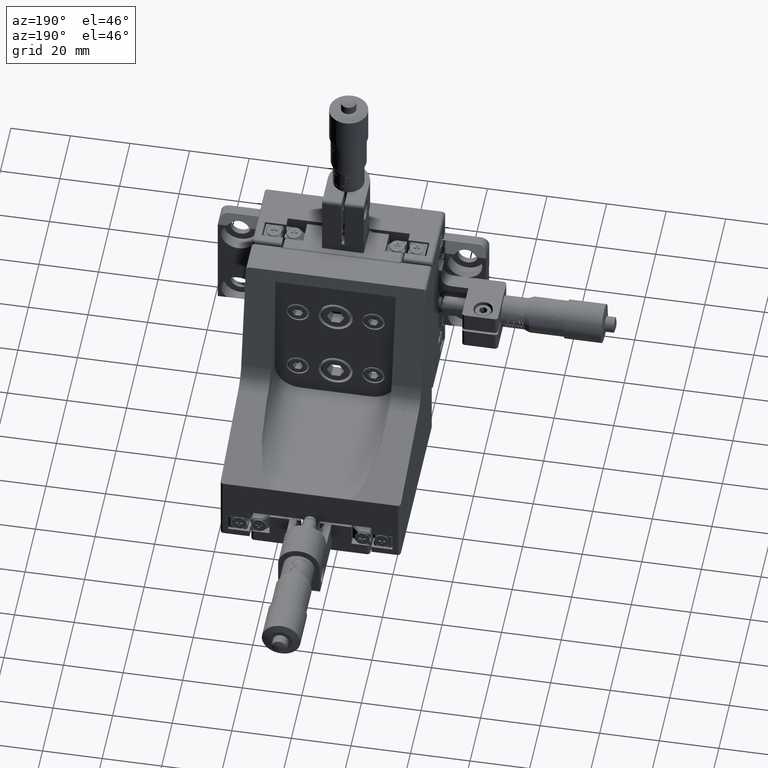
[diagram: clean part render]
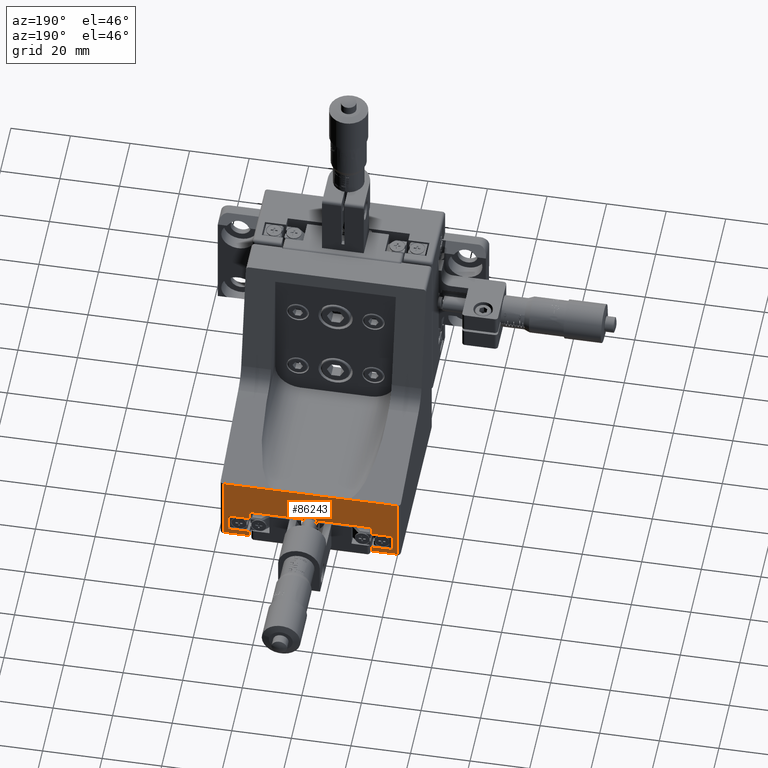
[diagram: same view with one face highlighted and labeled with its STEP entity id]
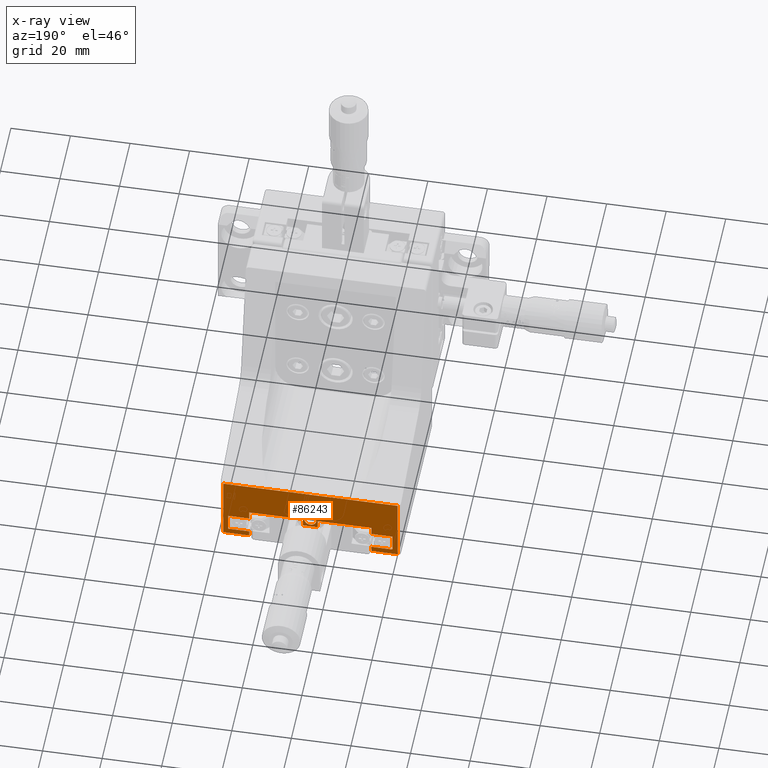
[diagram: x-ray of the same camera — body ghosted, the highlighted face saturated]
A machine part, auxiliary view. The second image highlights one B-rep face of the part: STEP entity #86243.
The next image is the same camera in x-ray: the body ghosted, the highlighted face saturated — about 0% of this face is hidden behind the body in this view.
In plain terms, the highlighted planar face has unit normal (0, 1, 0).
Its self-contained STEP definition (entity closure, byte-faithful):
#2886 = VECTOR ( 'NONE', #40735, 1000.000000000000000 ) ;
#3011 = LINE ( 'NONE', #80358, #55477 ) ;
#3198 = ORIENTED_EDGE ( 'NONE', *, *, #19032, .F. ) ;
#3262 = LINE ( 'NONE', #70730, #43471 ) ;
#4701 = CARTESIAN_POINT ( 'NONE',  ( 5.816032552456010600, 76.61820798943614400, -30.49247405631721400 ) ) ;
#5289 = CARTESIAN_POINT ( 'NONE',  ( 28.81603255245601500, 76.61820798943614400, -39.59247405631720100 ) ) ;
#6055 = ORIENTED_EDGE ( 'NONE', *, *, #11046, .F. ) ;
#6358 = EDGE_CURVE ( 'NONE', #25277, #31886, #37168, .T. ) ;
#6452 = VECTOR ( 'NONE', #89919, 1000.000000000000000 ) ;
#6771 = VERTEX_POINT ( 'NONE', #25525 ) ;
#8375 = EDGE_CURVE ( 'NONE', #32689, #14480, #49267, .T. ) ;
#9143 = VERTEX_POINT ( 'NONE', #53956 ) ;
#9743 = ORIENTED_EDGE ( 'NONE', *, *, #59594, .T. ) ;
#9948 = DIRECTION ( 'NONE',  ( -0.0000000000000000000, 0.0000000000000000000, 1.000000000000000000 ) ) ;
#11046 = EDGE_CURVE ( 'NONE', #41450, #13221, #3262, .T. ) ;
#11585 = DIRECTION ( 'NONE',  ( 1.000000000000000000, 0.0000000000000000000, 0.0000000000000000000 ) ) ;
#11787 = CARTESIAN_POINT ( 'NONE',  ( -12.18396744754399200, 76.61820798943614400, -41.49247405631721400 ) ) ;
#11817 = VERTEX_POINT ( 'NONE', #84651 ) ;
#11912 = VECTOR ( 'NONE', #71041, 1000.000000000000000 ) ;
#12260 = EDGE_CURVE ( 'NONE', #11817, #22935, #77621, .T. ) ;
#13221 = VERTEX_POINT ( 'NONE', #32316 ) ;
#13642 = DIRECTION ( 'NONE',  ( 0.0000000000000000000, 0.0000000000000000000, -1.000000000000000000 ) ) ;
#13849 = VECTOR ( 'NONE', #13642, 1000.000000000000000 ) ;
#14115 = LINE ( 'NONE', #27620, #11912 ) ;
#14480 = VERTEX_POINT ( 'NONE', #41995 ) ;
#14850 = PLANE ( 'NONE',  #23911 ) ;
#14963 = VECTOR ( 'NONE', #70775, 1000.000000000000000 ) ;
#15700 = LINE ( 'NONE', #18755, #32448 ) ;
#16664 = ORIENTED_EDGE ( 'NONE', *, *, #37840, .F. ) ;
#17235 = LINE ( 'NONE', #63592, #14963 ) ;
#18192 = VECTOR ( 'NONE', #54617, 1000.000000000000000 ) ;
#18755 = CARTESIAN_POINT ( 'NONE',  ( 28.81603255245601500, 76.61820798943614400, -33.49247405631720700 ) ) ;
#19032 = EDGE_CURVE ( 'NONE', #34493, #6771, #26937, .T. ) ;
#19044 = VERTEX_POINT ( 'NONE', #27085 ) ;
#19840 = CARTESIAN_POINT ( 'NONE',  ( 35.91603255245601600, 76.61820798943614400, -33.49247405631720700 ) ) ;
#21831 = DIRECTION ( 'NONE',  ( 1.000000000000000000, 0.0000000000000000000, 0.0000000000000000000 ) ) ;
#22220 = LINE ( 'NONE', #45187, #91398 ) ;
#22935 = VERTEX_POINT ( 'NONE', #39313 ) ;
#23640 = VERTEX_POINT ( 'NONE', #85259 ) ;
#23911 = AXIS2_PLACEMENT_3D ( 'NONE', #29505, #79430, #36686 ) ;
#25277 = VERTEX_POINT ( 'NONE', #78002 ) ;
#25467 = LINE ( 'NONE', #39428, #6452 ) ;
#25525 = CARTESIAN_POINT ( 'NONE',  ( 8.316032552456013200, 76.61820798943614400, -32.69247405631721600 ) ) ;
#25527 = EDGE_CURVE ( 'NONE', #9143, #35130, #86416, .T. ) ;
#26787 = DIRECTION ( 'NONE',  ( 0.0000000000000000000, 0.0000000000000000000, -1.000000000000000000 ) ) ;
#26937 = CIRCLE ( 'NONE', #62770, 2.000000000000001800 ) ;
#26955 = VECTOR ( 'NONE', #85157, 1000.000000000000000 ) ;
#27085 = CARTESIAN_POINT ( 'NONE',  ( 28.81603255245601500, 76.61820798943614400, -30.49247405631721400 ) ) ;
#27421 = EDGE_LOOP ( 'NONE', ( #3198, #53498 ) ) ;
#27620 = CARTESIAN_POINT ( 'NONE',  ( -12.18396744754399200, 76.61820798943614400, -33.49247405631720700 ) ) ;
#29505 = CARTESIAN_POINT ( 'NONE',  ( -21.93396744754398500, 76.61820798943614400, -41.49247405631720700 ) ) ;
#31886 = VERTEX_POINT ( 'NONE', #44657 ) ;
#32316 = CARTESIAN_POINT ( 'NONE',  ( 28.81603255245601500, 76.61820798943614400, -39.59247405631720100 ) ) ;
#32448 = VECTOR ( 'NONE', #11585, 1000.000000000000000 ) ;
#32689 = VERTEX_POINT ( 'NONE', #79987 ) ;
#33384 = VECTOR ( 'NONE', #71651, 1000.000000000000000 ) ;
#34493 = VERTEX_POINT ( 'NONE', #45564 ) ;
#35108 = DIRECTION ( 'NONE',  ( -1.000000000000000000, 0.0000000000000000000, 8.551453754815241900E-016 ) ) ;
#35130 = VERTEX_POINT ( 'NONE', #82499 ) ;
#35263 = CARTESIAN_POINT ( 'NONE',  ( -19.28396744754398600, 76.61820798943614400, -33.49247405631720700 ) ) ;
#35953 = DIRECTION ( 'NONE',  ( -0.0000000000000000000, 0.0000000000000000000, -1.000000000000000000 ) ) ;
#36288 = EDGE_CURVE ( 'NONE', #35130, #66592, #3011, .T. ) ;
#36442 = CARTESIAN_POINT ( 'NONE',  ( 8.316032552456013200, 76.61820798943614400, -30.69247405631721300 ) ) ;
#36446 = VECTOR ( 'NONE', #26787, 1000.000000000000000 ) ;
#36686 = DIRECTION ( 'NONE',  ( 0.0000000000000000000, -0.0000000000000000000, 1.000000000000000000 ) ) ;
#36869 = VECTOR ( 'NONE', #47165, 1000.000000000000000 ) ;
#37168 = LINE ( 'NONE', #4701, #18192 ) ;
#37580 = EDGE_CURVE ( 'NONE', #23640, #58471, #14115, .T. ) ;
#37840 = EDGE_CURVE ( 'NONE', #46895, #19044, #40855, .T. ) ;
#37925 = DIRECTION ( 'NONE',  ( 1.000000000000000000, 0.0000000000000000000, 0.0000000000000000000 ) ) ;
#39144 = CARTESIAN_POINT ( 'NONE',  ( -21.93396744754398500, 76.61820798943614400, -41.49247405631720700 ) ) ;
#39307 = ORIENTED_EDGE ( 'NONE', *, *, #36288, .T. ) ;
#39313 = CARTESIAN_POINT ( 'NONE',  ( -19.28396744754398600, 76.61820798943614400, -33.49247405631720700 ) ) ;
#39428 = CARTESIAN_POINT ( 'NONE',  ( -12.18396744754399200, 76.61820798943614400, -39.59247405631720100 ) ) ;
#39655 = CARTESIAN_POINT ( 'NONE',  ( 10.81603255245601500, 76.61820798943614400, -30.49247405631721400 ) ) ;
#40735 = DIRECTION ( 'NONE',  ( 1.000000000000000000, 0.0000000000000000000, 0.0000000000000000000 ) ) ;
#40855 = LINE ( 'NONE', #76265, #2886 ) ;
#40861 = EDGE_CURVE ( 'NONE', #62906, #41450, #87551, .T. ) ;
#41450 = VERTEX_POINT ( 'NONE', #49467 ) ;
#41474 = ORIENTED_EDGE ( 'NONE', *, *, #37580, .F. ) ;
#41804 = DIRECTION ( 'NONE',  ( 0.0000000000000000000, 1.000000000000000000, 0.0000000000000000000 ) ) ;
#41992 = EDGE_CURVE ( 'NONE', #22935, #23640, #64935, .T. ) ;
#41995 = CARTESIAN_POINT ( 'NONE',  ( 37.56603255245600800, 76.61820798943614400, -41.49247405631720700 ) ) ;
#43264 = ORIENTED_EDGE ( 'NONE', *, *, #59072, .F. ) ;
#43311 = EDGE_CURVE ( 'NONE', #55396, #11817, #25467, .T. ) ;
#43319 = ORIENTED_EDGE ( 'NONE', *, *, #6358, .T. ) ;
#43471 = VECTOR ( 'NONE', #35108, 1000.000000000000000 ) ;
#43642 = DIRECTION ( 'NONE',  ( 0.0000000000000000000, 0.0000000000000000000, 1.000000000000000000 ) ) ;
#44657 = CARTESIAN_POINT ( 'NONE',  ( 5.816032552456003500, 76.61820798943614400, -30.49247405631721400 ) ) ;
#45187 = CARTESIAN_POINT ( 'NONE',  ( -12.18396744754399200, 76.61820798943614400, -42.49247405631721400 ) ) ;
#45388 = CARTESIAN_POINT ( 'NONE',  ( -12.18396744754399200, 76.61820798943614400, -39.59247405631720100 ) ) ;
#45395 = VECTOR ( 'NONE', #21831, 1000.000000000000000 ) ;
#45564 = CARTESIAN_POINT ( 'NONE',  ( 8.316032552456013200, 76.61820798943614400, -28.69247405631720900 ) ) ;
#46350 = DIRECTION ( 'NONE',  ( 1.000000000000000000, 0.0000000000000000000, 0.0000000000000000000 ) ) ;
#46439 = CARTESIAN_POINT ( 'NONE',  ( 28.81603255245601500, 76.61820798943614400, -33.49247405631720700 ) ) ;
#46895 = VERTEX_POINT ( 'NONE', #61893 ) ;
#47165 = DIRECTION ( 'NONE',  ( 0.0000000000000000000, 0.0000000000000000000, -1.000000000000000000 ) ) ;
#47236 = CARTESIAN_POINT ( 'NONE',  ( -19.28396744754398600, 76.61820798943614400, -39.59247405631720100 ) ) ;
#47821 = LINE ( 'NONE', #49777, #83436 ) ;
#48491 = ORIENTED_EDGE ( 'NONE', *, *, #83075, .T. ) ;
#49267 = LINE ( 'NONE', #39144, #84900 ) ;
#49467 = CARTESIAN_POINT ( 'NONE',  ( 35.91603255245601600, 76.61820798943614400, -39.59247405631720800 ) ) ;
#49777 = CARTESIAN_POINT ( 'NONE',  ( -21.93396744754398500, 76.61820798943614400, -41.49247405631720700 ) ) ;
#50134 = CARTESIAN_POINT ( 'NONE',  ( 5.816032552456010600, 76.61820798943614400, -33.49247405631720700 ) ) ;
#51768 = ORIENTED_EDGE ( 'NONE', *, *, #54836, .F. ) ;
#52373 = DIRECTION ( 'NONE',  ( 0.0000000000000000000, 0.0000000000000000000, 1.000000000000000000 ) ) ;
#53498 = ORIENTED_EDGE ( 'NONE', *, *, #83236, .F. ) ;
#53956 = CARTESIAN_POINT ( 'NONE',  ( -20.93396744754398500, 76.61820798943614400, -41.49247405631720700 ) ) ;
#54617 = DIRECTION ( 'NONE',  ( -0.0000000000000000000, -0.0000000000000000000, 1.000000000000000000 ) ) ;
#54726 = CIRCLE ( 'NONE', #85737, 2.000000000000001800 ) ;
#54836 = EDGE_CURVE ( 'NONE', #80660, #55396, #22220, .T. ) ;
#55396 = VERTEX_POINT ( 'NONE', #45388 ) ;
#55452 = LINE ( 'NONE', #5289, #36446 ) ;
#55477 = VECTOR ( 'NONE', #37925, 1000.000000000000000 ) ;
#55859 = LINE ( 'NONE', #39655, #36869 ) ;
#56891 = DIRECTION ( 'NONE',  ( 1.000000000000000000, 0.0000000000000000000, 0.0000000000000000000 ) ) ;
#57176 = CARTESIAN_POINT ( 'NONE',  ( 37.56603255245600800, 76.61820798943614400, -41.49247405631720700 ) ) ;
#58471 = VERTEX_POINT ( 'NONE', #74422 ) ;
#58715 = VECTOR ( 'NONE', #82729, 1000.000000000000000 ) ;
#59072 = EDGE_CURVE ( 'NONE', #78818, #62906, #15700, .T. ) ;
#59594 = EDGE_CURVE ( 'NONE', #67052, #25277, #71330, .T. ) ;
#61893 = CARTESIAN_POINT ( 'NONE',  ( 10.81603255245601500, 76.61820798943614400, -30.49247405631721400 ) ) ;
#62770 = AXIS2_PLACEMENT_3D ( 'NONE', #84443, #41804, #91604 ) ;
#62906 = VERTEX_POINT ( 'NONE', #19840 ) ;
#63556 = ORIENTED_EDGE ( 'NONE', *, *, #40861, .F. ) ;
#63592 = CARTESIAN_POINT ( 'NONE',  ( 28.81603255245601500, 76.61820798943614400, -30.49247405631721400 ) ) ;
#63625 = CARTESIAN_POINT ( 'NONE',  ( 35.91603255245601600, 76.61820798943614400, -33.49247405631720700 ) ) ;
#63906 = VECTOR ( 'NONE', #35953, 1000.000000000000000 ) ;
#64260 = EDGE_CURVE ( 'NONE', #19044, #78818, #17235, .T. ) ;
#64458 = CARTESIAN_POINT ( 'NONE',  ( 10.81603255245601500, 76.61820798943614400, -33.49247405631720700 ) ) ;
#64935 = LINE ( 'NONE', #35263, #26955 ) ;
#65054 = EDGE_CURVE ( 'NONE', #66592, #14480, #68430, .T. ) ;
#65785 = FACE_BOUND ( 'NONE', #27421, .T. ) ;
#66592 = VERTEX_POINT ( 'NONE', #78578 ) ;
#66659 = ORIENTED_EDGE ( 'NONE', *, *, #25527, .T. ) ;
#67052 = VERTEX_POINT ( 'NONE', #64458 ) ;
#67505 = VECTOR ( 'NONE', #9948, 1000.000000000000000 ) ;
#67968 = ORIENTED_EDGE ( 'NONE', *, *, #86699, .F. ) ;
#68430 = LINE ( 'NONE', #57176, #63906 ) ;
#68584 = ORIENTED_EDGE ( 'NONE', *, *, #77196, .F. ) ;
#68603 = ORIENTED_EDGE ( 'NONE', *, *, #65054, .T. ) ;
#70699 = ORIENTED_EDGE ( 'NONE', *, *, #43311, .F. ) ;
#70730 = CARTESIAN_POINT ( 'NONE',  ( 35.91603255245601600, 76.61820798943614400, -39.59247405631720800 ) ) ;
#70775 = DIRECTION ( 'NONE',  ( 0.0000000000000000000, 0.0000000000000000000, -1.000000000000000000 ) ) ;
#71041 = DIRECTION ( 'NONE',  ( 0.0000000000000000000, 0.0000000000000000000, 1.000000000000000000 ) ) ;
#71330 = LINE ( 'NONE', #50134, #33384 ) ;
#71651 = DIRECTION ( 'NONE',  ( -1.000000000000000000, -0.0000000000000000000, -0.0000000000000000000 ) ) ;
#71799 = CARTESIAN_POINT ( 'NONE',  ( -12.18396744754399200, 76.61820798943614400, -30.49247405631721400 ) ) ;
#73611 = ORIENTED_EDGE ( 'NONE', *, *, #87261, .F. ) ;
#74422 = CARTESIAN_POINT ( 'NONE',  ( -12.18396744754399200, 76.61820798943614400, -30.49247405631721400 ) ) ;
#74515 = ORIENTED_EDGE ( 'NONE', *, *, #12260, .F. ) ;
#75151 = ORIENTED_EDGE ( 'NONE', *, *, #41992, .F. ) ;
#76265 = CARTESIAN_POINT ( 'NONE',  ( -12.18396744754399200, 76.61820798943614400, -30.49247405631721400 ) ) ;
#77196 = EDGE_CURVE ( 'NONE', #13221, #32689, #55452, .T. ) ;
#77621 = LINE ( 'NONE', #47236, #58715 ) ;
#78002 = CARTESIAN_POINT ( 'NONE',  ( 5.816032552456010600, 76.61820798943614400, -33.49247405631720700 ) ) ;
#78578 = CARTESIAN_POINT ( 'NONE',  ( 37.56603255245600800, 76.61820798943614400, -18.49251642354722200 ) ) ;
#78818 = VERTEX_POINT ( 'NONE', #46439 ) ;
#79430 = DIRECTION ( 'NONE',  ( 0.0000000000000000000, 1.000000000000000000, 0.0000000000000000000 ) ) ;
#79987 = CARTESIAN_POINT ( 'NONE',  ( 28.81603255245601500, 76.61820798943614400, -41.49247405631721400 ) ) ;
#80259 = FACE_OUTER_BOUND ( 'NONE', #86626, .T. ) ;
#80358 = CARTESIAN_POINT ( 'NONE',  ( -21.93396744754398500, 76.61820798943614400, -18.49251642354722200 ) ) ;
#80660 = VERTEX_POINT ( 'NONE', #11787 ) ;
#81081 = LINE ( 'NONE', #71799, #45395 ) ;
#81110 = CARTESIAN_POINT ( 'NONE',  ( -20.93396744754398500, 76.61820798943614400, -18.49251642354722200 ) ) ;
#82499 = CARTESIAN_POINT ( 'NONE',  ( -20.93396744754398500, 76.61820798943614400, -18.49251642354722200 ) ) ;
#82574 = ORIENTED_EDGE ( 'NONE', *, *, #64260, .F. ) ;
#82729 = DIRECTION ( 'NONE',  ( 0.0000000000000000000, 0.0000000000000000000, 1.000000000000000000 ) ) ;
#83075 = EDGE_CURVE ( 'NONE', #46895, #67052, #55859, .T. ) ;
#83236 = EDGE_CURVE ( 'NONE', #6771, #34493, #54726, .T. ) ;
#83436 = VECTOR ( 'NONE', #56891, 1000.000000000000000 ) ;
#84443 = CARTESIAN_POINT ( 'NONE',  ( 8.316032552456013200, 76.61820798943614400, -30.69247405631721300 ) ) ;
#84651 = CARTESIAN_POINT ( 'NONE',  ( -19.28396744754398600, 76.61820798943614400, -39.59247405631720100 ) ) ;
#84900 = VECTOR ( 'NONE', #46350, 1000.000000000000000 ) ;
#85157 = DIRECTION ( 'NONE',  ( 1.000000000000000000, 0.0000000000000000000, 0.0000000000000000000 ) ) ;
#85259 = CARTESIAN_POINT ( 'NONE',  ( -12.18396744754399200, 76.61820798943614400, -33.49247405631720700 ) ) ;
#85737 = AXIS2_PLACEMENT_3D ( 'NONE', #36442, #86349, #43642 ) ;
#86243 = ADVANCED_FACE ( 'NONE', ( #65785, #80259 ), #14850, .T. ) ;
#86349 = DIRECTION ( 'NONE',  ( 0.0000000000000000000, 1.000000000000000000, 0.0000000000000000000 ) ) ;
#86416 = LINE ( 'NONE', #81110, #67505 ) ;
#86626 = EDGE_LOOP ( 'NONE', ( #39307, #68603, #86835, #68584, #6055, #63556, #43264, #82574, #16664, #48491, #9743, #43319, #73611, #41474, #75151, #74515, #70699, #51768, #67968, #66659 ) ) ;
#86699 = EDGE_CURVE ( 'NONE', #9143, #80660, #47821, .T. ) ;
#86835 = ORIENTED_EDGE ( 'NONE', *, *, #8375, .F. ) ;
#87261 = EDGE_CURVE ( 'NONE', #58471, #31886, #81081, .T. ) ;
#87551 = LINE ( 'NONE', #63625, #13849 ) ;
#89919 = DIRECTION ( 'NONE',  ( -1.000000000000000000, 0.0000000000000000000, 1.221636250687893200E-016 ) ) ;
#91398 = VECTOR ( 'NONE', #52373, 1000.000000000000000 ) ;
#91604 = DIRECTION ( 'NONE',  ( 0.0000000000000000000, 0.0000000000000000000, 1.000000000000000000 ) ) ;